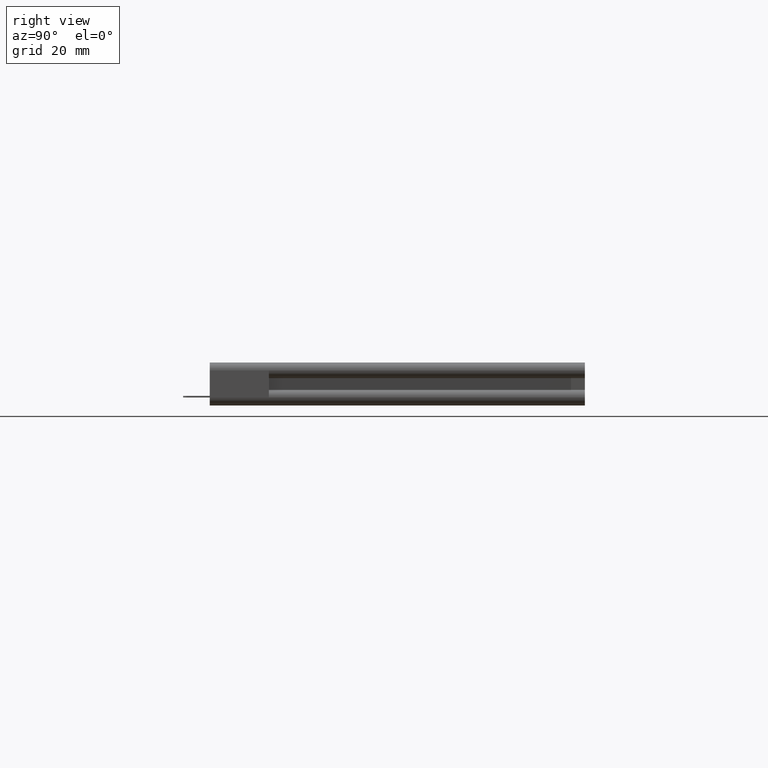
[diagram: clean part render]
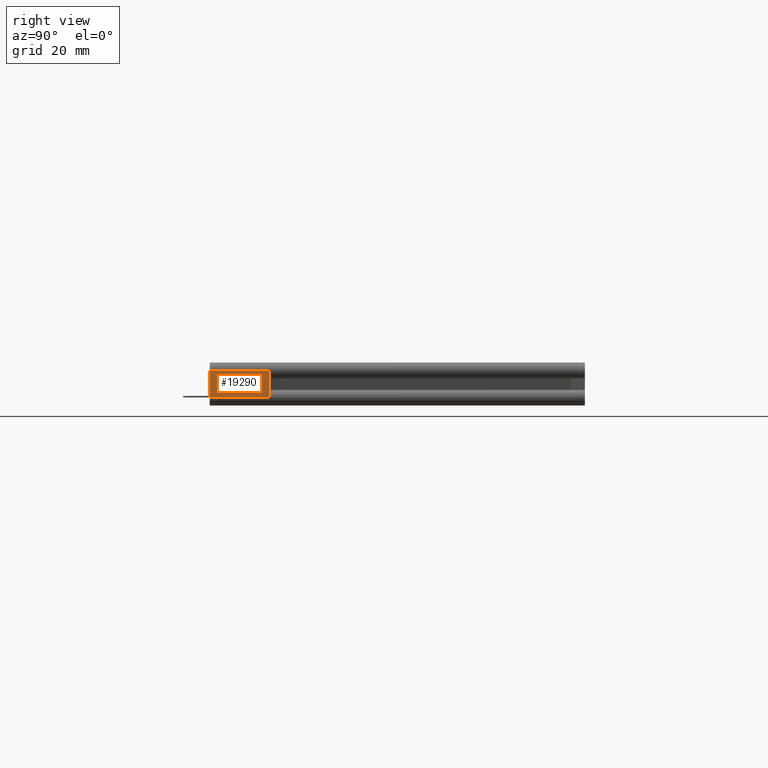
[diagram: same view with one face highlighted and labeled with its STEP entity id]
A machine part, right view. The second image highlights one B-rep face of the part: STEP entity #19290.
In plain terms, the highlighted planar face has unit normal (-1, 0, 0).
Its self-contained STEP definition (entity closure, byte-faithful):
#46 = VECTOR ( 'NONE', #6473, 39.37007874015748100 ) ;
#288 = VERTEX_POINT ( 'NONE', #10058 ) ;
#825 = EDGE_CURVE ( 'NONE', #6638, #5346, #8859, .T. ) ;
#923 = CARTESIAN_POINT ( 'NONE',  ( 4.875000000000000000, 0.4729999999999994200, -0.1072947366142829200 ) ) ;
#951 = EDGE_CURVE ( 'NONE', #6638, #13088, #6018, .T. ) ;
#1015 = CARTESIAN_POINT ( 'NONE',  ( 4.875000000000000900, 0.0000000000000000000, 0.1715000000000000100 ) ) ;
#1162 = VECTOR ( 'NONE', #11427, 39.37007874015748100 ) ;
#1722 = VECTOR ( 'NONE', #2631, 39.37007874015748100 ) ;
#2631 = DIRECTION ( 'NONE',  ( -0.0000000000000000000, -0.0000000000000000000, -1.000000000000000000 ) ) ;
#2677 = CARTESIAN_POINT ( 'NONE',  ( 4.875000000000000900, 0.0000000000000000000, 0.1715000000000000100 ) ) ;
#2986 = ORIENTED_EDGE ( 'NONE', *, *, #11651, .F. ) ;
#4581 = VERTEX_POINT ( 'NONE', #16259 ) ;
#4700 = CARTESIAN_POINT ( 'NONE',  ( 4.875000000000000900, 0.0000000000000000000, -0.1075000000000000100 ) ) ;
#4722 = ORIENTED_EDGE ( 'NONE', *, *, #17592, .T. ) ;
#4732 = DIRECTION ( 'NONE',  ( 0.0000000000000000000, 0.0000000000000000000, 1.000000000000000000 ) ) ;
#5142 = VECTOR ( 'NONE', #14650, 39.37007874015748100 ) ;
#5346 = VERTEX_POINT ( 'NONE', #22058 ) ;
#5969 = EDGE_CURVE ( 'NONE', #288, #14709, #15235, .T. ) ;
#6018 = LINE ( 'NONE', #21607, #1162 ) ;
#6473 = DIRECTION ( 'NONE',  ( 0.0000000000000000000, 1.000000000000000000, 0.0000000000000000000 ) ) ;
#6543 = LINE ( 'NONE', #2677, #1722 ) ;
#6638 = VERTEX_POINT ( 'NONE', #11721 ) ;
#8355 = CARTESIAN_POINT ( 'NONE',  ( 4.875000000000000900, 3.000000000000000400, -0.1075000000000000100 ) ) ;
#8859 = LINE ( 'NONE', #11944, #18064 ) ;
#9963 = LINE ( 'NONE', #21596, #5142 ) ;
#10058 = CARTESIAN_POINT ( 'NONE',  ( 4.875000000000000000, 0.4729999999999994200, 0.1072947366142829200 ) ) ;
#10130 = ORIENTED_EDGE ( 'NONE', *, *, #825, .F. ) ;
#10171 = DIRECTION ( 'NONE',  ( -0.0000000000000000000, -0.0000000000000000000, -1.000000000000000000 ) ) ;
#10196 = CARTESIAN_POINT ( 'NONE',  ( 4.875000000000000900, 3.000000000000000400, 0.1715000000000000100 ) ) ;
#10923 = EDGE_CURVE ( 'NONE', #13088, #4581, #6543, .T. ) ;
#10998 = CARTESIAN_POINT ( 'NONE',  ( 4.875000000000000900, 0.0000000000000000000, 0.1075000000000000000 ) ) ;
#11427 = DIRECTION ( 'NONE',  ( -0.0000000000000000000, -1.000000000000000000, -0.0000000000000000000 ) ) ;
#11642 = DIRECTION ( 'NONE',  ( -0.0000000000000000000, -0.0000000000000000000, -1.000000000000000000 ) ) ;
#11651 = EDGE_CURVE ( 'NONE', #12744, #18696, #18525, .T. ) ;
#11721 = CARTESIAN_POINT ( 'NONE',  ( 4.875000000000000900, 3.000000000000000400, 0.1075000000000000000 ) ) ;
#11944 = CARTESIAN_POINT ( 'NONE',  ( 4.875000000000000900, 3.000000000000000400, 0.1715000000000000100 ) ) ;
#12331 = EDGE_LOOP ( 'NONE', ( #22708, #4722, #2986, #20826, #20364, #23217, #10130, #14153 ) ) ;
#12744 = VERTEX_POINT ( 'NONE', #20756 ) ;
#12885 = VECTOR ( 'NONE', #21274, 39.37007874015748100 ) ;
#13088 = VERTEX_POINT ( 'NONE', #10998 ) ;
#13094 = VECTOR ( 'NONE', #17612, 39.37007874015748100 ) ;
#14153 = ORIENTED_EDGE ( 'NONE', *, *, #951, .T. ) ;
#14650 = DIRECTION ( 'NONE',  ( -0.0000000000000000000, 1.000000000000000000, -0.0000000000000000000 ) ) ;
#14709 = VERTEX_POINT ( 'NONE', #923 ) ;
#14768 = LINE ( 'NONE', #4700, #46 ) ;
#15235 = LINE ( 'NONE', #21111, #12885 ) ;
#15245 = AXIS2_PLACEMENT_3D ( 'NONE', #1015, #15749, #4732 ) ;
#15749 = DIRECTION ( 'NONE',  ( -1.000000000000000000, 0.0000000000000000000, 0.0000000000000000000 ) ) ;
#15814 = FACE_OUTER_BOUND ( 'NONE', #12331, .T. ) ;
#15824 = CARTESIAN_POINT ( 'NONE',  ( 4.875000000000000900, 0.0000000000000000000, -0.1072947366142829200 ) ) ;
#16259 = CARTESIAN_POINT ( 'NONE',  ( 4.875000000000000900, 0.0000000000000000000, -0.1075000000000000100 ) ) ;
#17592 = EDGE_CURVE ( 'NONE', #4581, #18696, #14768, .T. ) ;
#17612 = DIRECTION ( 'NONE',  ( -0.0000000000000000000, -1.000000000000000000, -0.0000000000000000000 ) ) ;
#17926 = LINE ( 'NONE', #15824, #13094 ) ;
#18064 = VECTOR ( 'NONE', #11642, 39.37007874015748100 ) ;
#18525 = LINE ( 'NONE', #10196, #22574 ) ;
#18696 = VERTEX_POINT ( 'NONE', #8355 ) ;
#19290 = ADVANCED_FACE ( 'NONE', ( #15814 ), #20906, .F. ) ;
#19535 = EDGE_CURVE ( 'NONE', #288, #5346, #9963, .T. ) ;
#20364 = ORIENTED_EDGE ( 'NONE', *, *, #5969, .F. ) ;
#20756 = CARTESIAN_POINT ( 'NONE',  ( 4.875000000000000900, 3.000000000000000400, -0.1072947366142829200 ) ) ;
#20826 = ORIENTED_EDGE ( 'NONE', *, *, #21203, .T. ) ;
#20906 = PLANE ( 'NONE',  #15245 ) ;
#21111 = CARTESIAN_POINT ( 'NONE',  ( 4.875000000000000000, 0.4729999999999994200, 0.04650000000000000000 ) ) ;
#21203 = EDGE_CURVE ( 'NONE', #12744, #14709, #17926, .T. ) ;
#21274 = DIRECTION ( 'NONE',  ( 0.0000000000000000000, 0.0000000000000000000, -1.000000000000000000 ) ) ;
#21596 = CARTESIAN_POINT ( 'NONE',  ( 4.875000000000000900, 0.0000000000000000000, 0.1072947366142829200 ) ) ;
#21607 = CARTESIAN_POINT ( 'NONE',  ( 4.875000000000000900, 0.0000000000000000000, 0.1075000000000000000 ) ) ;
#22058 = CARTESIAN_POINT ( 'NONE',  ( 4.875000000000000900, 3.000000000000000400, 0.1072947366142829200 ) ) ;
#22574 = VECTOR ( 'NONE', #10171, 39.37007874015748100 ) ;
#22708 = ORIENTED_EDGE ( 'NONE', *, *, #10923, .T. ) ;
#23217 = ORIENTED_EDGE ( 'NONE', *, *, #19535, .T. ) ;